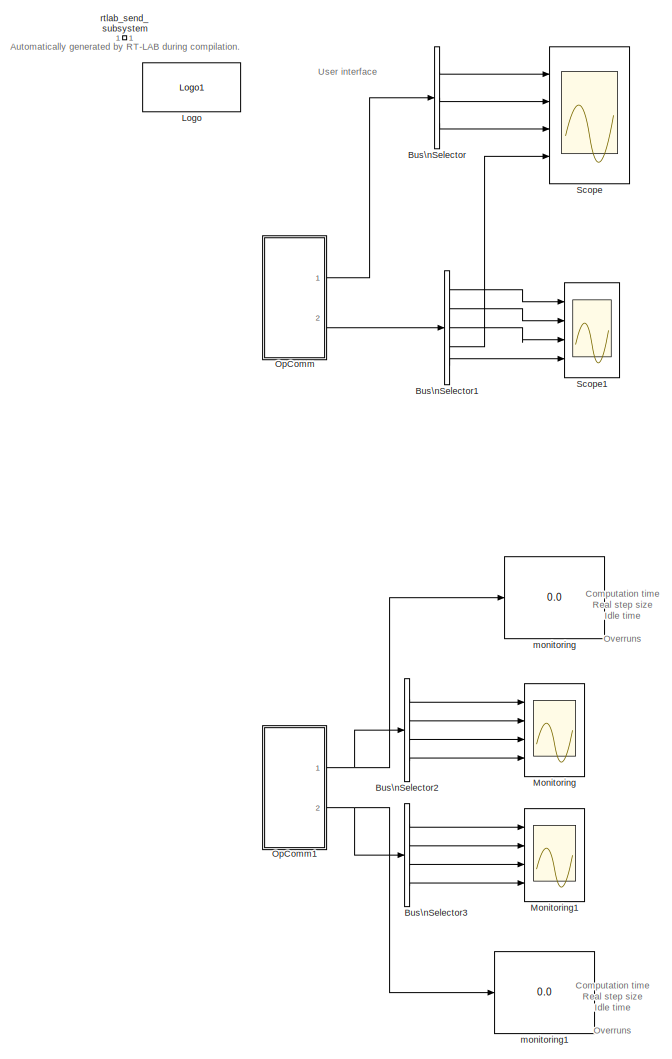
[diagram: root canvas - part 1/2, left side, full height]
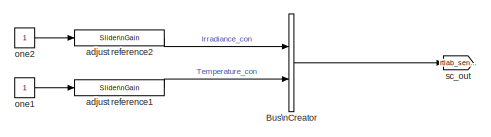
[diagram: root canvas - part 2/2, top right region]
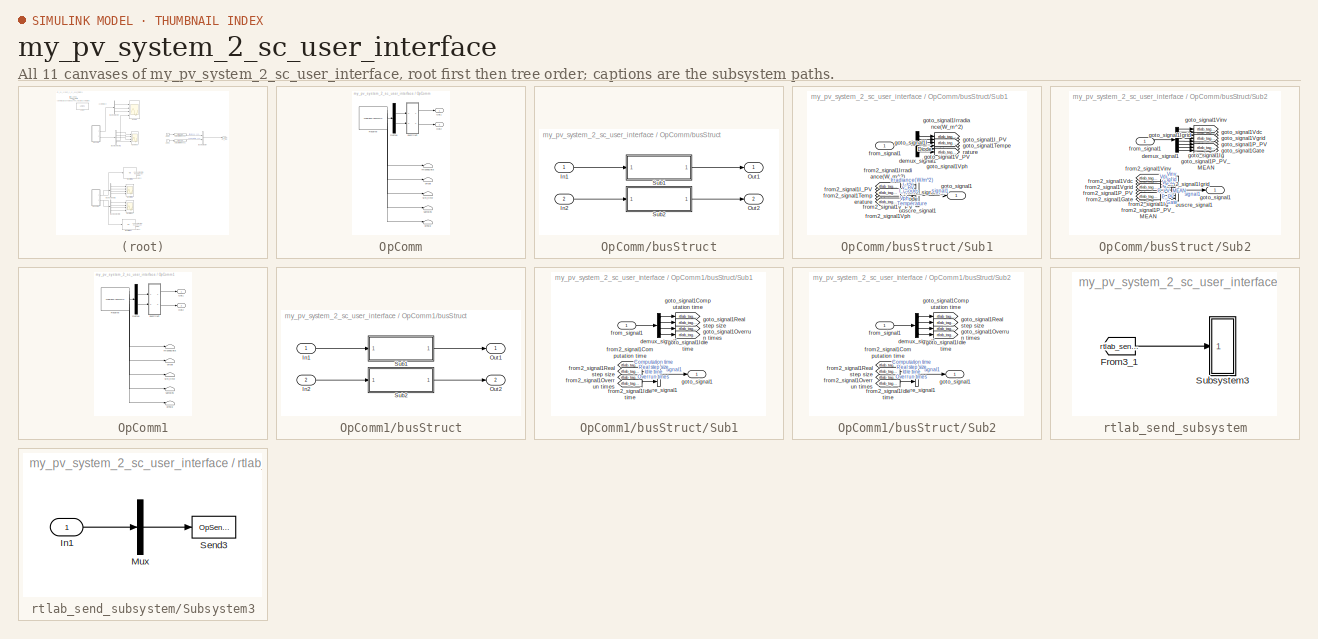
[diagram: thumbnail index - all 11 canvases of the model, root first then tree order]
MODEL my_pv_system_2_sc_user_interface
KIND model
BLOCK [BusCreator] Bus\nCreator
  DisplayOption = bar
  Inputs = 2
  Ports = [2, 1]
  SID = 410
BLOCK [BusSelector] Bus\nSelector
  OutputSignals = Irradiance(W/m^2),I_PV,V_PV
  Ports = [1, 3]
  SID = 411
BLOCK [BusSelector] Bus\nSelector1
  OutputSignals = Vgrid,Igrid,Vdc,P_PV,Gate
  Ports = [1, 5]
  SID = 412
BLOCK [BusSelector] Bus\nSelector2
  OutputSignals = Computation time,Real step size,Idle time,Overrun times
  Ports = [1, 4]
  SID = 413
BLOCK [BusSelector] Bus\nSelector3
  OutputSignals = Computation time,Real step size,Idle time,Overrun times
  Ports = [1, 4]
  SID = 414
BLOCK [Reference] Logo  REF=opal_lib/Logo1
  Ports = []
  SID = 415
  SourceBlock = opal_lib/Logo1
  SourceType = Opal-RT logo
  vide = []
BLOCK [Scope] Monitoring
  DataFormat = StructureWithTime
  Floating = off
  NumInputPorts = 4
  Ports = [4]
  SID = 416
  SampleTime = 0
  SaveName = ScopeData6
  ShowLegends = off
  YMax = 5~5~5~5
  YMin = -5~-5~-5~-5
BLOCK [Scope] Monitoring1
  DataFormat = StructureWithTime
  Floating = off
  NumInputPorts = 4
  Ports = [4]
  SID = 417
  SampleTime = 0
  SaveName = ScopeData2
  ShowLegends = off
  YMax = 5~5~5~5
  YMin = -5~-5~-5~-5
BLOCK [SubSystem] OpComm
  Ports = [0, 2]
  RequestExecContextInheritance = off
  SID = 486
BLOCK [Demux] OpComm/Demux
  Outputs = [6  11]
  Ports = [1, 2]
  SID = 487
BLOCK [Outport] OpComm/Out1
  IconDisplay = Port number
  SID = 537
BLOCK [Outport] OpComm/Out2
  IconDisplay = Port number
  Port = 2
  SID = 538
BLOCK [Reference] OpComm/Receive  REF=opal_lib/Communication/OpRecFromQNX
  Acqu_Group = 1
  Data_Width = 17
  Interpolation = on
  Node_num = 1
  Ports = [0, 6]
  SID = 488
  SourceBlock = opal_lib/Communication/OpRecFromQNX
  SourceType = OPAL Receive Icon
  Synchronization = on
  Threshold = 1.0
  modelname = my_pv_system.mdl
  sampletime = 5e-05
BLOCK [SubSystem] OpComm/busStruct
  Ports = [2, 2]
  RequestExecContextInheritance = off
  SID = 489
BLOCK [Inport] OpComm/busStruct/In1
  IconDisplay = Port number
  SID = 490
BLOCK [Inport] OpComm/busStruct/In2
  IconDisplay = Port number
  Port = 2
  SID = 491
BLOCK [Outport] OpComm/busStruct/Out1
  IconDisplay = Port number
  SID = 530
BLOCK [Outport] OpComm/busStruct/Out2
  IconDisplay = Port number
  Port = 2
  SID = 531
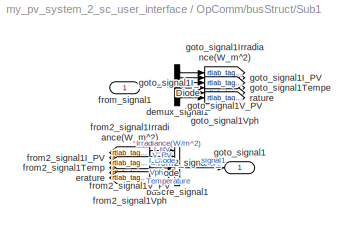
BLOCK [SubSystem] OpComm/busStruct/Sub1
  Ports = [1, 1]
  RequestExecContextInheritance = off
  SID = 492
BLOCK [BusCreator] OpComm/busStruct/Sub1/buscre_signal1
  Inputs = 6
  Ports = [6, 1]
  SID = 494
BLOCK [Demux] OpComm/busStruct/Sub1/demux_signal1
  Outputs = [1  1  1  1  1  1]
  Ports = [1, 6]
  SID = 495
BLOCK [From] OpComm/busStruct/Sub1/from2_signal1I_Diode
  GotoTag = rtlab_tag_4
  SID = 496
BLOCK [From] OpComm/busStruct/Sub1/from2_signal1I_PV
  GotoTag = rtlab_tag_2
  SID = 497
BLOCK [From] OpComm/busStruct/Sub1/from2_signal1Irradiance(W_m^2)
  GotoTag = rtlab_tag_1
  SID = 498
BLOCK [From] OpComm/busStruct/Sub1/from2_signal1Temperature
  GotoTag = rtlab_tag_5
  SID = 499
BLOCK [From] OpComm/busStruct/Sub1/from2_signal1V_PV
  GotoTag = rtlab_tag_3
  SID = 500
BLOCK [From] OpComm/busStruct/Sub1/from2_signal1Vph
  GotoTag = rtlab_tag_6
  SID = 501
BLOCK [Inport] OpComm/busStruct/Sub1/from_signal1
  IconDisplay = Port number
  SID = 493
BLOCK [Outport] OpComm/busStruct/Sub1/goto_signal1
  IconDisplay = Port number
  SID = 508
BLOCK [Goto] OpComm/busStruct/Sub1/goto_signal1I_Diode
  GotoTag = rtlab_tag_4
  SID = 502
BLOCK [Goto] OpComm/busStruct/Sub1/goto_signal1I_PV
  GotoTag = rtlab_tag_2
  SID = 503
BLOCK [Goto] OpComm/busStruct/Sub1/goto_signal1Irradiance(W_m^2)
  GotoTag = rtlab_tag_1
  SID = 504
BLOCK [Goto] OpComm/busStruct/Sub1/goto_signal1Temperature
  GotoTag = rtlab_tag_5
  SID = 505
BLOCK [Goto] OpComm/busStruct/Sub1/goto_signal1V_PV
  GotoTag = rtlab_tag_3
  SID = 506
BLOCK [Goto] OpComm/busStruct/Sub1/goto_signal1Vph
  GotoTag = rtlab_tag_6
  SID = 507
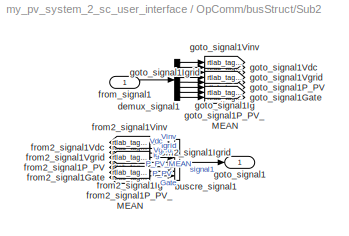
BLOCK [SubSystem] OpComm/busStruct/Sub2
  Ports = [1, 1]
  RequestExecContextInheritance = off
  SID = 509
BLOCK [BusCreator] OpComm/busStruct/Sub2/buscre_signal1
  Inputs = 8
  Ports = [8, 1]
  SID = 511
BLOCK [Demux] OpComm/busStruct/Sub2/demux_signal1
  Outputs = [1  1  1  1  1  1  1  4]
  Ports = [1, 8]
  SID = 512
BLOCK [From] OpComm/busStruct/Sub2/from2_signal1Gate
  GotoTag = rtlab_tag_8
  SID = 513
BLOCK [From] OpComm/busStruct/Sub2/from2_signal1Ig
  GotoTag = rtlab_tag_5
  SID = 514
BLOCK [From] OpComm/busStruct/Sub2/from2_signal1Igrid
  GotoTag = rtlab_tag_3
  SID = 515
BLOCK [From] OpComm/busStruct/Sub2/from2_signal1P_PV
  GotoTag = rtlab_tag_6
  SID = 516
BLOCK [From] OpComm/busStruct/Sub2/from2_signal1P_PV_MEAN
  GotoTag = rtlab_tag_7
  SID = 517
BLOCK [From] OpComm/busStruct/Sub2/from2_signal1Vdc
  GotoTag = rtlab_tag_2
  SID = 518
BLOCK [From] OpComm/busStruct/Sub2/from2_signal1Vgrid
  GotoTag = rtlab_tag_4
  SID = 519
BLOCK [From] OpComm/busStruct/Sub2/from2_signal1Vinv
  GotoTag = rtlab_tag_1
  SID = 520
BLOCK [Inport] OpComm/busStruct/Sub2/from_signal1
  IconDisplay = Port number
  SID = 510
BLOCK [Outport] OpComm/busStruct/Sub2/goto_signal1
  IconDisplay = Port number
  SID = 529
BLOCK [Goto] OpComm/busStruct/Sub2/goto_signal1Gate
  GotoTag = rtlab_tag_8
  SID = 521
BLOCK [Goto] OpComm/busStruct/Sub2/goto_signal1Ig
  GotoTag = rtlab_tag_5
  SID = 522
BLOCK [Goto] OpComm/busStruct/Sub2/goto_signal1Igrid
  GotoTag = rtlab_tag_3
  SID = 523
BLOCK [Goto] OpComm/busStruct/Sub2/goto_signal1P_PV
  GotoTag = rtlab_tag_6
  SID = 524
BLOCK [Goto] OpComm/busStruct/Sub2/goto_signal1P_PV_MEAN
  GotoTag = rtlab_tag_7
  SID = 525
BLOCK [Goto] OpComm/busStruct/Sub2/goto_signal1Vdc
  GotoTag = rtlab_tag_2
  SID = 526
BLOCK [Goto] OpComm/busStruct/Sub2/goto_signal1Vgrid
  GotoTag = rtlab_tag_4
  SID = 527
BLOCK [Goto] OpComm/busStruct/Sub2/goto_signal1Vinv
  GotoTag = rtlab_tag_1
  SID = 528
BLOCK [Terminator] OpComm/dynsig
  SID = 532
BLOCK [Terminator] OpComm/missedData
  SID = 533
BLOCK [Terminator] OpComm/offset
  SID = 534
BLOCK [Terminator] OpComm/samples
  SID = 535
BLOCK [Terminator] OpComm/sim_time
  SID = 536
BLOCK [SubSystem] OpComm1
  Ports = [0, 2]
  RequestExecContextInheritance = off
  SID = 580
BLOCK [Demux] OpComm1/Demux
  Outputs = [4  4]
  Ports = [1, 2]
  SID = 581
BLOCK [Outport] OpComm1/Out1
  IconDisplay = Port number
  SID = 619
BLOCK [Outport] OpComm1/Out2
  IconDisplay = Port number
  Port = 2
  SID = 620
BLOCK [Reference] OpComm1/Receive  REF=opal_lib/Communication/OpRecFromQNX
  Acqu_Group = 2
  Data_Width = 8
  Interpolation = on
  Node_num = 1
  Ports = [0, 6]
  SID = 582
  SourceBlock = opal_lib/Communication/OpRecFromQNX
  SourceType = OPAL Receive Icon
  Synchronization = on
  Threshold = 1.0
  modelname = my_pv_system.mdl
  sampletime = 5e-05
BLOCK [SubSystem] OpComm1/busStruct
  Ports = [2, 2]
  RequestExecContextInheritance = off
  SID = 583
BLOCK [Inport] OpComm1/busStruct/In1
  IconDisplay = Port number
  SID = 584
BLOCK [Inport] OpComm1/busStruct/In2
  IconDisplay = Port number
  Port = 2
  SID = 585
BLOCK [Outport] OpComm1/busStruct/Out1
  IconDisplay = Port number
  SID = 612
BLOCK [Outport] OpComm1/busStruct/Out2
  IconDisplay = Port number
  Port = 2
  SID = 613
BLOCK [SubSystem] OpComm1/busStruct/Sub1
  Ports = [1, 1]
  RequestExecContextInheritance = off
  SID = 586
BLOCK [BusCreator] OpComm1/busStruct/Sub1/buscre_signal1
  Ports = [4, 1]
  SID = 588
BLOCK [Demux] OpComm1/busStruct/Sub1/demux_signal1
  Outputs = [1  1  1  1]
  Ports = [1, 4]
  SID = 589
BLOCK [From] OpComm1/busStruct/Sub1/from2_signal1Computation time
  GotoTag = rtlab_tag_1
  SID = 590
BLOCK [From] OpComm1/busStruct/Sub1/from2_signal1Idle time
  GotoTag = rtlab_tag_3
  SID = 591
BLOCK [From] OpComm1/busStruct/Sub1/from2_signal1Overrun times
  GotoTag = rtlab_tag_4
  SID = 592
BLOCK [From] OpComm1/busStruct/Sub1/from2_signal1Real step size
  GotoTag = rtlab_tag_2
  SID = 593
BLOCK [Inport] OpComm1/busStruct/Sub1/from_signal1
  IconDisplay = Port number
  SID = 587
BLOCK [Outport] OpComm1/busStruct/Sub1/goto_signal1
  IconDisplay = Port number
  SID = 598
BLOCK [Goto] OpComm1/busStruct/Sub1/goto_signal1Computation time
  GotoTag = rtlab_tag_1
  SID = 594
BLOCK [Goto] OpComm1/busStruct/Sub1/goto_signal1Idle time
  GotoTag = rtlab_tag_3
  SID = 595
BLOCK [Goto] OpComm1/busStruct/Sub1/goto_signal1Overrun times
  GotoTag = rtlab_tag_4
  SID = 596
BLOCK [Goto] OpComm1/busStruct/Sub1/goto_signal1Real step size
  GotoTag = rtlab_tag_2
  SID = 597
BLOCK [SubSystem] OpComm1/busStruct/Sub2
  Ports = [1, 1]
  RequestExecContextInheritance = off
  SID = 599
BLOCK [BusCreator] OpComm1/busStruct/Sub2/buscre_signal1
  Ports = [4, 1]
  SID = 601
BLOCK [Demux] OpComm1/busStruct/Sub2/demux_signal1
  Outputs = [1  1  1  1]
  Ports = [1, 4]
  SID = 602
BLOCK [From] OpComm1/busStruct/Sub2/from2_signal1Computation time
  GotoTag = rtlab_tag_1
  SID = 603
BLOCK [From] OpComm1/busStruct/Sub2/from2_signal1Idle time
  GotoTag = rtlab_tag_3
  SID = 604
BLOCK [From] OpComm1/busStruct/Sub2/from2_signal1Overrun times
  GotoTag = rtlab_tag_4
  SID = 605
BLOCK [From] OpComm1/busStruct/Sub2/from2_signal1Real step size
  GotoTag = rtlab_tag_2
  SID = 606
BLOCK [Inport] OpComm1/busStruct/Sub2/from_signal1
  IconDisplay = Port number
  SID = 600
BLOCK [Outport] OpComm1/busStruct/Sub2/goto_signal1
  IconDisplay = Port number
  SID = 611
BLOCK [Goto] OpComm1/busStruct/Sub2/goto_signal1Computation time
  GotoTag = rtlab_tag_1
  SID = 607
BLOCK [Goto] OpComm1/busStruct/Sub2/goto_signal1Idle time
  GotoTag = rtlab_tag_3
  SID = 608
BLOCK [Goto] OpComm1/busStruct/Sub2/goto_signal1Overrun times
  GotoTag = rtlab_tag_4
  SID = 609
BLOCK [Goto] OpComm1/busStruct/Sub2/goto_signal1Real step size
  GotoTag = rtlab_tag_2
  SID = 610
BLOCK [Terminator] OpComm1/dynsig
  SID = 614
BLOCK [Terminator] OpComm1/missedData
  SID = 615
BLOCK [Terminator] OpComm1/offset
  SID = 616
BLOCK [Terminator] OpComm1/samples
  SID = 617
BLOCK [Terminator] OpComm1/sim_time
  SID = 618
BLOCK [Scope] Scope
  DataFormat = StructureWithTime
  Floating = off
  NumInputPorts = 4
  Ports = [4]
  SID = 420
  SampleTime = 0
  ShowLegends = off
  TimeRange = 10
  YMax = 1001~9~500~3400
  YMin = 999~4~300~2000
BLOCK [Scope] Scope1
  DataFormat = StructureWithTime
  Floating = off
  NumInputPorts = 4
  Ports = [4]
  SID = 421
  SampleTime = 0
  SaveName = ScopeData1
  ShowLegends = off
  YMax = 100~5~5~5
  YMin = 0~-5~-5~-5
BLOCK [Reference] adjust reference1  REF=simulink/Math\nOperations/Slider\nGain
  Ports = [1, 1]
  SID = 422
  SourceBlock = simulink/Math\nOperations/Slider\nGain
  SourceType = Slider Gain
  gain = 25
  high = 60
  low = 0
BLOCK [Reference] adjust reference2  REF=simulink/Math\nOperations/Slider\nGain
  Ports = [1, 1]
  SID = 423
  SourceBlock = simulink/Math\nOperations/Slider\nGain
  SourceType = Slider Gain
  gain = 500
  high = 1000
  low = 0
BLOCK [Display] monitoring
  Decimation = 5000
  Ports = [1]
  SID = 424
BLOCK [Display] monitoring1
  Decimation = 5000
  Ports = [1]
  SID = 425
BLOCK [Constant] one1
  SID = 426
BLOCK [Constant] one2
  SID = 427
BLOCK [SubSystem] rtlab_send_subsystem
  Ports = []
  Priority = -100
  RequestExecContextInheritance = off
  SID = 621
BLOCK [From] rtlab_send_subsystem/From3_1
  GotoTag = rtlab_send_1
  SID = 625
BLOCK [SubSystem] rtlab_send_subsystem/Subsystem3
  Ports = [1]
  RequestExecContextInheritance = off
  SID = 622
BLOCK [Inport] rtlab_send_subsystem/Subsystem3/In1
  IconDisplay = Port number
  PortDimensions = 2
  SID = 626
BLOCK [Mux] rtlab_send_subsystem/Subsystem3/Mux
  Inputs = 1
  Ports = [1, 1]
  SID = 623
BLOCK [Reference] rtlab_send_subsystem/Subsystem3/Send3  REF=opal_lib/Communication/OpSendPar\nToQNX
  Node_num = 1
  Ports = [1]
  SID = 624
  SourceBlock = opal_lib/Communication/OpSendPar\nToQNX
  SourceType = OPAL Send Icon
  modelname = my_pv_system
BLOCK [Goto] sc_out
  GotoTag = rtlab_send_1
  SID = 627
  TagVisibility = global
ANNOTATION (root): Automatically generated by RT-LAB during compilation.
ANNOTATION (root): Computation time\nReal step size\nIdle time\nOverruns
ANNOTATION (root): User interface
LINE Bus\nCreator:1 -> sc_out:1
LINE Bus\nSelector1:1 -> Scope1:1
LINE Bus\nSelector1:2 -> Scope1:2
LINE Bus\nSelector1:3 -> Scope1:3
LINE Bus\nSelector1:4 -> Scope:4
LINE Bus\nSelector1:5 -> Scope1:4
LINE Bus\nSelector2:1 -> Monitoring:1
LINE Bus\nSelector2:2 -> Monitoring:2
LINE Bus\nSelector2:3 -> Monitoring:3
LINE Bus\nSelector2:4 -> Monitoring:4
LINE Bus\nSelector3:1 -> Monitoring1:1
LINE Bus\nSelector3:2 -> Monitoring1:2
LINE Bus\nSelector3:3 -> Monitoring1:3
LINE Bus\nSelector3:4 -> Monitoring1:4
LINE Bus\nSelector:1 -> Scope:1
LINE Bus\nSelector:2 -> Scope:2
LINE Bus\nSelector:3 -> Scope:3
LINE OpComm/Demux:1 -> OpComm/busStruct:1
LINE OpComm/Demux:2 -> OpComm/busStruct:2
LINE OpComm/Receive:1 -> OpComm/Demux:1
LINE OpComm/Receive:2 -> OpComm/missedData:1
LINE OpComm/Receive:3 -> OpComm/offset:1
LINE OpComm/Receive:4 -> OpComm/sim_time:1
LINE OpComm/Receive:5 -> OpComm/samples:1
LINE OpComm/Receive:6 -> OpComm/dynsig:1
LINE OpComm/busStruct/In1:1 -> OpComm/busStruct/Sub1:1
LINE OpComm/busStruct/In2:1 -> OpComm/busStruct/Sub2:1
LINE OpComm/busStruct/Sub1/buscre_signal1:1 -> OpComm/busStruct/Sub1/goto_signal1:1
LINE OpComm/busStruct/Sub1/demux_signal1:1 -> OpComm/busStruct/Sub1/goto_signal1Irradiance(W_m^2):1
LINE OpComm/busStruct/Sub1/demux_signal1:2 -> OpComm/busStruct/Sub1/goto_signal1I_PV:1
LINE OpComm/busStruct/Sub1/demux_signal1:3 -> OpComm/busStruct/Sub1/goto_signal1V_PV:1
LINE OpComm/busStruct/Sub1/demux_signal1:4 -> OpComm/busStruct/Sub1/goto_signal1I_Diode:1
LINE OpComm/busStruct/Sub1/demux_signal1:5 -> OpComm/busStruct/Sub1/goto_signal1Temperature:1
LINE OpComm/busStruct/Sub1/demux_signal1:6 -> OpComm/busStruct/Sub1/goto_signal1Vph:1
LINE OpComm/busStruct/Sub1/from2_signal1I_Diode:1 -> OpComm/busStruct/Sub1/buscre_signal1:4
LINE OpComm/busStruct/Sub1/from2_signal1I_PV:1 -> OpComm/busStruct/Sub1/buscre_signal1:2
LINE OpComm/busStruct/Sub1/from2_signal1Irradiance(W_m^2):1 -> OpComm/busStruct/Sub1/buscre_signal1:1
LINE OpComm/busStruct/Sub1/from2_signal1Temperature:1 -> OpComm/busStruct/Sub1/buscre_signal1:5
LINE OpComm/busStruct/Sub1/from2_signal1V_PV:1 -> OpComm/busStruct/Sub1/buscre_signal1:3
LINE OpComm/busStruct/Sub1/from2_signal1Vph:1 -> OpComm/busStruct/Sub1/buscre_signal1:6
LINE OpComm/busStruct/Sub1/from_signal1:1 -> OpComm/busStruct/Sub1/demux_signal1:1
LINE OpComm/busStruct/Sub1:1 -> OpComm/busStruct/Out1:1
LINE OpComm/busStruct/Sub2/buscre_signal1:1 -> OpComm/busStruct/Sub2/goto_signal1:1
LINE OpComm/busStruct/Sub2/demux_signal1:1 -> OpComm/busStruct/Sub2/goto_signal1Vinv:1
LINE OpComm/busStruct/Sub2/demux_signal1:2 -> OpComm/busStruct/Sub2/goto_signal1Vdc:1
LINE OpComm/busStruct/Sub2/demux_signal1:3 -> OpComm/busStruct/Sub2/goto_signal1Igrid:1
LINE OpComm/busStruct/Sub2/demux_signal1:4 -> OpComm/busStruct/Sub2/goto_signal1Vgrid:1
LINE OpComm/busStruct/Sub2/demux_signal1:5 -> OpComm/busStruct/Sub2/goto_signal1Ig:1
LINE OpComm/busStruct/Sub2/demux_signal1:6 -> OpComm/busStruct/Sub2/goto_signal1P_PV:1
LINE OpComm/busStruct/Sub2/demux_signal1:7 -> OpComm/busStruct/Sub2/goto_signal1P_PV_MEAN:1
LINE OpComm/busStruct/Sub2/demux_signal1:8 -> OpComm/busStruct/Sub2/goto_signal1Gate:1
LINE OpComm/busStruct/Sub2/from2_signal1Gate:1 -> OpComm/busStruct/Sub2/buscre_signal1:8
LINE OpComm/busStruct/Sub2/from2_signal1Ig:1 -> OpComm/busStruct/Sub2/buscre_signal1:5
LINE OpComm/busStruct/Sub2/from2_signal1Igrid:1 -> OpComm/busStruct/Sub2/buscre_signal1:3
LINE OpComm/busStruct/Sub2/from2_signal1P_PV:1 -> OpComm/busStruct/Sub2/buscre_signal1:6
LINE OpComm/busStruct/Sub2/from2_signal1P_PV_MEAN:1 -> OpComm/busStruct/Sub2/buscre_signal1:7
LINE OpComm/busStruct/Sub2/from2_signal1Vdc:1 -> OpComm/busStruct/Sub2/buscre_signal1:2
LINE OpComm/busStruct/Sub2/from2_signal1Vgrid:1 -> OpComm/busStruct/Sub2/buscre_signal1:4
LINE OpComm/busStruct/Sub2/from2_signal1Vinv:1 -> OpComm/busStruct/Sub2/buscre_signal1:1
LINE OpComm/busStruct/Sub2/from_signal1:1 -> OpComm/busStruct/Sub2/demux_signal1:1
LINE OpComm/busStruct/Sub2:1 -> OpComm/busStruct/Out2:1
LINE OpComm/busStruct:1 -> OpComm/Out1:1
LINE OpComm/busStruct:2 -> OpComm/Out2:1
LINE OpComm1/Demux:1 -> OpComm1/busStruct:1
LINE OpComm1/Demux:2 -> OpComm1/busStruct:2
LINE OpComm1/Receive:1 -> OpComm1/Demux:1
LINE OpComm1/Receive:2 -> OpComm1/missedData:1
LINE OpComm1/Receive:3 -> OpComm1/offset:1
LINE OpComm1/Receive:4 -> OpComm1/sim_time:1
LINE OpComm1/Receive:5 -> OpComm1/samples:1
LINE OpComm1/Receive:6 -> OpComm1/dynsig:1
LINE OpComm1/busStruct/In1:1 -> OpComm1/busStruct/Sub1:1
LINE OpComm1/busStruct/In2:1 -> OpComm1/busStruct/Sub2:1
LINE OpComm1/busStruct/Sub1/buscre_signal1:1 -> OpComm1/busStruct/Sub1/goto_signal1:1
LINE OpComm1/busStruct/Sub1/demux_signal1:1 -> OpComm1/busStruct/Sub1/goto_signal1Computation time:1
LINE OpComm1/busStruct/Sub1/demux_signal1:2 -> OpComm1/busStruct/Sub1/goto_signal1Real step size:1
LINE OpComm1/busStruct/Sub1/demux_signal1:3 -> OpComm1/busStruct/Sub1/goto_signal1Idle time:1
LINE OpComm1/busStruct/Sub1/demux_signal1:4 -> OpComm1/busStruct/Sub1/goto_signal1Overrun times:1
LINE OpComm1/busStruct/Sub1/from2_signal1Computation time:1 -> OpComm1/busStruct/Sub1/buscre_signal1:1
LINE OpComm1/busStruct/Sub1/from2_signal1Idle time:1 -> OpComm1/busStruct/Sub1/buscre_signal1:3
LINE OpComm1/busStruct/Sub1/from2_signal1Overrun times:1 -> OpComm1/busStruct/Sub1/buscre_signal1:4
LINE OpComm1/busStruct/Sub1/from2_signal1Real step size:1 -> OpComm1/busStruct/Sub1/buscre_signal1:2
LINE OpComm1/busStruct/Sub1/from_signal1:1 -> OpComm1/busStruct/Sub1/demux_signal1:1
LINE OpComm1/busStruct/Sub1:1 -> OpComm1/busStruct/Out1:1
LINE OpComm1/busStruct/Sub2/buscre_signal1:1 -> OpComm1/busStruct/Sub2/goto_signal1:1
LINE OpComm1/busStruct/Sub2/demux_signal1:1 -> OpComm1/busStruct/Sub2/goto_signal1Computation time:1
LINE OpComm1/busStruct/Sub2/demux_signal1:2 -> OpComm1/busStruct/Sub2/goto_signal1Real step size:1
LINE OpComm1/busStruct/Sub2/demux_signal1:3 -> OpComm1/busStruct/Sub2/goto_signal1Idle time:1
LINE OpComm1/busStruct/Sub2/demux_signal1:4 -> OpComm1/busStruct/Sub2/goto_signal1Overrun times:1
LINE OpComm1/busStruct/Sub2/from2_signal1Computation time:1 -> OpComm1/busStruct/Sub2/buscre_signal1:1
LINE OpComm1/busStruct/Sub2/from2_signal1Idle time:1 -> OpComm1/busStruct/Sub2/buscre_signal1:3
LINE OpComm1/busStruct/Sub2/from2_signal1Overrun times:1 -> OpComm1/busStruct/Sub2/buscre_signal1:4
LINE OpComm1/busStruct/Sub2/from2_signal1Real step size:1 -> OpComm1/busStruct/Sub2/buscre_signal1:2
LINE OpComm1/busStruct/Sub2/from_signal1:1 -> OpComm1/busStruct/Sub2/demux_signal1:1
LINE OpComm1/busStruct/Sub2:1 -> OpComm1/busStruct/Out2:1
LINE OpComm1/busStruct:1 -> OpComm1/Out1:1
LINE OpComm1/busStruct:2 -> OpComm1/Out2:1
NET OpComm1:1 -> Bus\nSelector2:1, monitoring:1
NET OpComm1:2 -> Bus\nSelector3:1, monitoring1:1
LINE OpComm:1 -> Bus\nSelector:1
LINE OpComm:2 -> Bus\nSelector1:1
LINE adjust reference1:1 -> Bus\nCreator:2
LINE adjust reference2:1 -> Bus\nCreator:1
LINE one1:1 -> adjust reference1:1
LINE one2:1 -> adjust reference2:1
LINE rtlab_send_subsystem/From3_1:1 -> rtlab_send_subsystem/Subsystem3:1
LINE rtlab_send_subsystem/Subsystem3/In1:1 -> rtlab_send_subsystem/Subsystem3/Mux:1
LINE rtlab_send_subsystem/Subsystem3/Mux:1 -> rtlab_send_subsystem/Subsystem3/Send3:1
note: NET lines group one-source signal fan-out (src -> all destinations, sorted); 1:1 wires keep LINE
